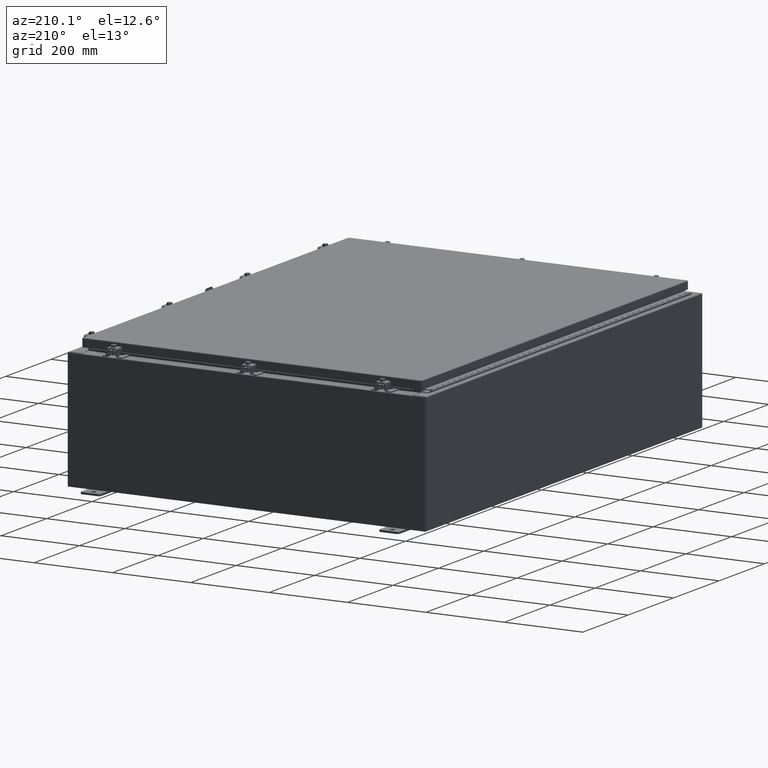
[diagram: clean part render]
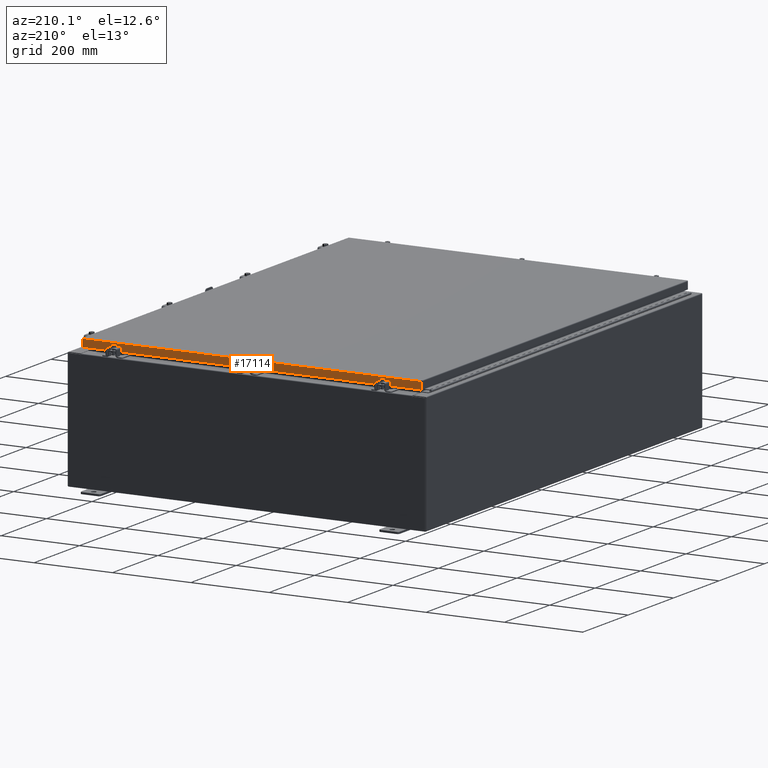
[diagram: same view with one face highlighted and labeled with its STEP entity id]
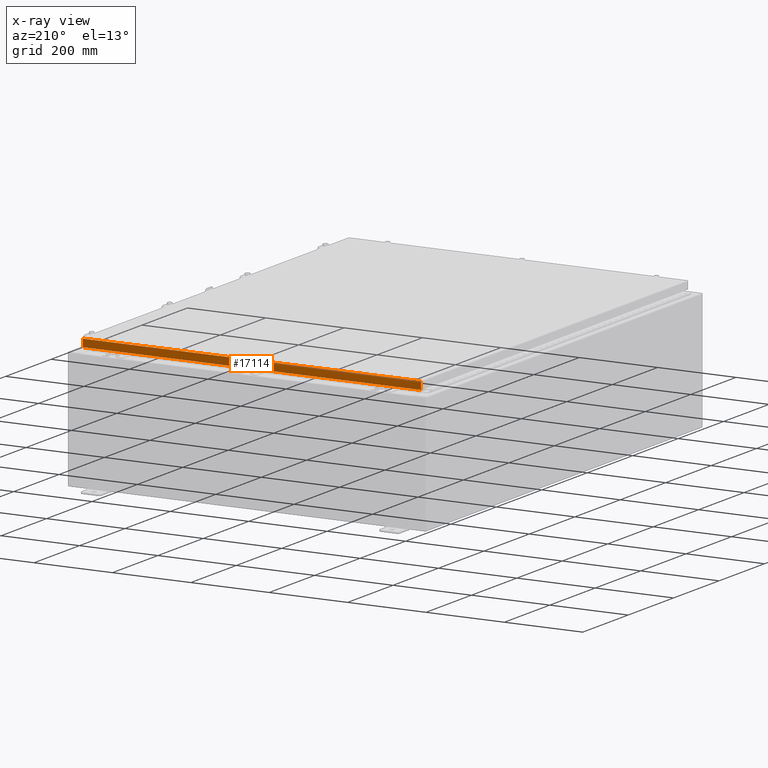
[diagram: x-ray of the same camera — body ghosted, the highlighted face saturated]
A machine part, auxiliary view. The second image highlights one B-rep face of the part: STEP entity #17114.
The next image is the same camera in x-ray: the body ghosted, the highlighted face saturated — about 0% of this face is hidden behind the body in this view.
In plain terms, the highlighted planar face has unit normal (0, -1, -0).
Its self-contained STEP definition (entity closure, byte-faithful):
#668 = VECTOR ( 'NONE', #42220, 39.37007874015748100 ) ;
#2324 = DIRECTION ( 'NONE',  ( 1.000000000000000000, 8.758115402030108600E-047, 1.239713195391617600E-016 ) ) ;
#2525 = PLANE ( 'NONE',  #10318 ) ;
#3458 = VERTEX_POINT ( 'NONE', #11324 ) ;
#4115 = CARTESIAN_POINT ( 'NONE',  ( -17.07799999999999600, 23.09400000000000800, -0.8500000000000043100 ) ) ;
#5003 = VECTOR ( 'NONE', #8296, 39.37007874015748100 ) ;
#5951 = FACE_OUTER_BOUND ( 'NONE', #33513, .T. ) ;
#8296 = DIRECTION ( 'NONE',  ( -1.000000000000000000, -6.989207801985679100E-031, -3.922586267643529200E-045 ) ) ;
#9934 = VECTOR ( 'NONE', #25392, 39.37007874015748100 ) ;
#9967 = VERTEX_POINT ( 'NONE', #33153 ) ;
#10318 = AXIS2_PLACEMENT_3D ( 'NONE', #23825, #36713, #11126 ) ;
#10696 = EDGE_CURVE ( 'NONE', #50984, #43870, #33450, .T. ) ;
#10950 = ORIENTED_EDGE ( 'NONE', *, *, #47896, .F. ) ;
#11126 = DIRECTION ( 'NONE',  ( 0.0000000000000000000, 5.637761885544689500E-015, -1.000000000000000000 ) ) ;
#11324 = CARTESIAN_POINT ( 'NONE',  ( 16.98915786437627100, 23.09400000000000800, -0.8499999999999999800 ) ) ;
#12322 = CARTESIAN_POINT ( 'NONE',  ( -16.98915786437626400, 23.09400000000000500, -0.07470000000000015500 ) ) ;
#15041 = CARTESIAN_POINT ( 'NONE',  ( -17.07799999999999600, 23.09400000000000800, -0.8500000000000043100 ) ) ;
#16448 = ORIENTED_EDGE ( 'NONE', *, *, #21608, .F. ) ;
#17114 = ADVANCED_FACE ( 'NONE', ( #5951 ), #2525, .F. ) ;
#17886 = CARTESIAN_POINT ( 'NONE',  ( -16.98915786437626400, 23.09400000000000500, -0.08769999999999589200 ) ) ;
#18340 = CARTESIAN_POINT ( 'NONE',  ( -16.23915786437625600, 23.09400000000000100, -0.8500000000000086400 ) ) ;
#19131 = ORIENTED_EDGE ( 'NONE', *, *, #21273, .F. ) ;
#21273 = EDGE_CURVE ( 'NONE', #49422, #9967, #26244, .T. ) ;
#21608 = EDGE_CURVE ( 'NONE', #9967, #3458, #32928, .T. ) ;
#23630 = CARTESIAN_POINT ( 'NONE',  ( -16.23915786437625600, 23.09400000000000100, -0.8500000000000086400 ) ) ;
#23825 = CARTESIAN_POINT ( 'NONE',  ( 0.0000000000000000000, 23.09400000000000500, 1.311287036958846300E-013 ) ) ;
#24713 = EDGE_CURVE ( 'NONE', #26699, #3458, #33996, .T. ) ;
#25392 = DIRECTION ( 'NONE',  ( 0.0000000000000000000, 5.637761885544689500E-015, -1.000000000000000000 ) ) ;
#26244 = LINE ( 'NONE', #18340, #36268 ) ;
#26699 = VERTEX_POINT ( 'NONE', #29878 ) ;
#29304 = LINE ( 'NONE', #15041, #50655 ) ;
#29581 = CARTESIAN_POINT ( 'NONE',  ( -17.07799999999999600, 23.09400000000000500, -0.08769999999999589200 ) ) ;
#29878 = CARTESIAN_POINT ( 'NONE',  ( 16.98915786437627100, 23.09400000000000500, -0.08769999999999589200 ) ) ;
#30412 = ORIENTED_EDGE ( 'NONE', *, *, #32246, .F. ) ;
#30844 = ORIENTED_EDGE ( 'NONE', *, *, #24713, .T. ) ;
#32246 = EDGE_CURVE ( 'NONE', #43870, #49422, #29304, .T. ) ;
#32928 = LINE ( 'NONE', #4115, #42933 ) ;
#33153 = CARTESIAN_POINT ( 'NONE',  ( 16.23915786437626400, 23.09400000000000100, -0.8500000000000086400 ) ) ;
#33450 = LINE ( 'NONE', #12322, #668 ) ;
#33513 = EDGE_LOOP ( 'NONE', ( #10950, #30844, #16448, #19131, #30412, #45533 ) ) ;
#33538 = CARTESIAN_POINT ( 'NONE',  ( -16.98915786437626400, 23.09400000000000800, -0.8500000000000043100 ) ) ;
#33996 = LINE ( 'NONE', #50958, #9934 ) ;
#36268 = VECTOR ( 'NONE', #47987, 39.37007874015748100 ) ;
#36713 = DIRECTION ( 'NONE',  ( 6.989207801985677300E-031, -1.000000000000000000, -5.637761885544689500E-015 ) ) ;
#39109 = LINE ( 'NONE', #29581, #5003 ) ;
#42220 = DIRECTION ( 'NONE',  ( -0.0000000000000000000, 5.637761885544689500E-015, -1.000000000000000000 ) ) ;
#42933 = VECTOR ( 'NONE', #46874, 39.37007874015748100 ) ;
#43870 = VERTEX_POINT ( 'NONE', #33538 ) ;
#45533 = ORIENTED_EDGE ( 'NONE', *, *, #10696, .F. ) ;
#46874 = DIRECTION ( 'NONE',  ( 1.000000000000000000, 8.758115402030108600E-047, 1.239713195391617600E-016 ) ) ;
#47896 = EDGE_CURVE ( 'NONE', #26699, #50984, #39109, .T. ) ;
#47987 = DIRECTION ( 'NONE',  ( 1.000000000000000000, -0.0000000000000000000, -0.0000000000000000000 ) ) ;
#49422 = VERTEX_POINT ( 'NONE', #23630 ) ;
#50655 = VECTOR ( 'NONE', #2324, 39.37007874015748100 ) ;
#50958 = CARTESIAN_POINT ( 'NONE',  ( 16.98915786437627100, 23.09400000000000500, 1.311287036958846300E-013 ) ) ;
#50984 = VERTEX_POINT ( 'NONE', #17886 ) ;